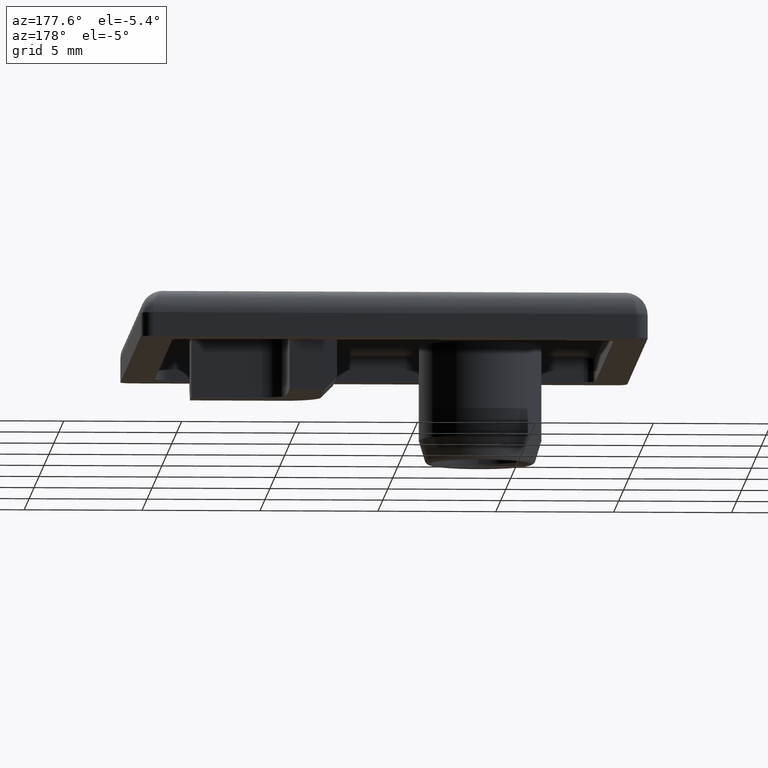
[diagram: clean part render]
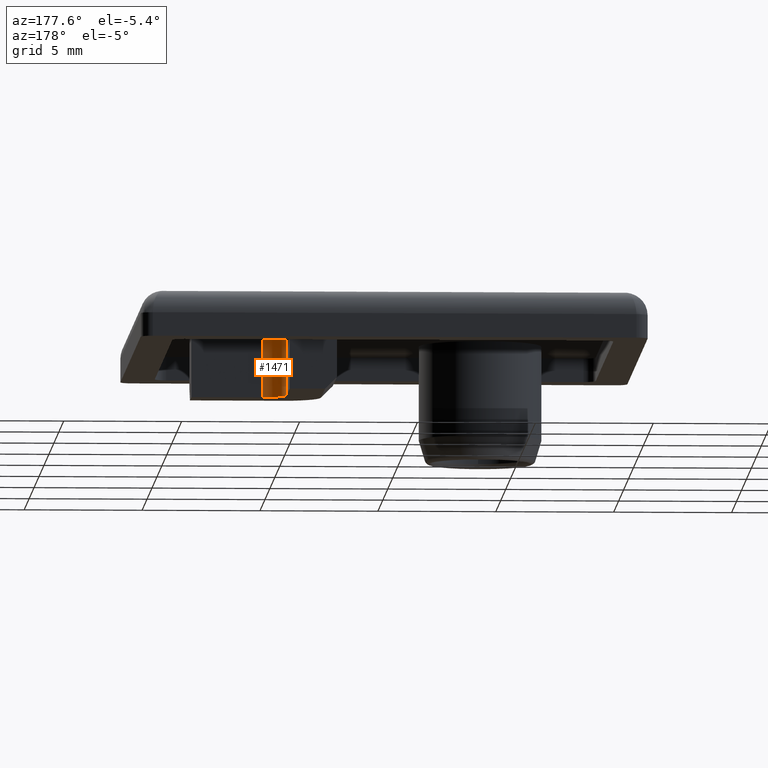
[diagram: same view with one face highlighted and labeled with its STEP entity id]
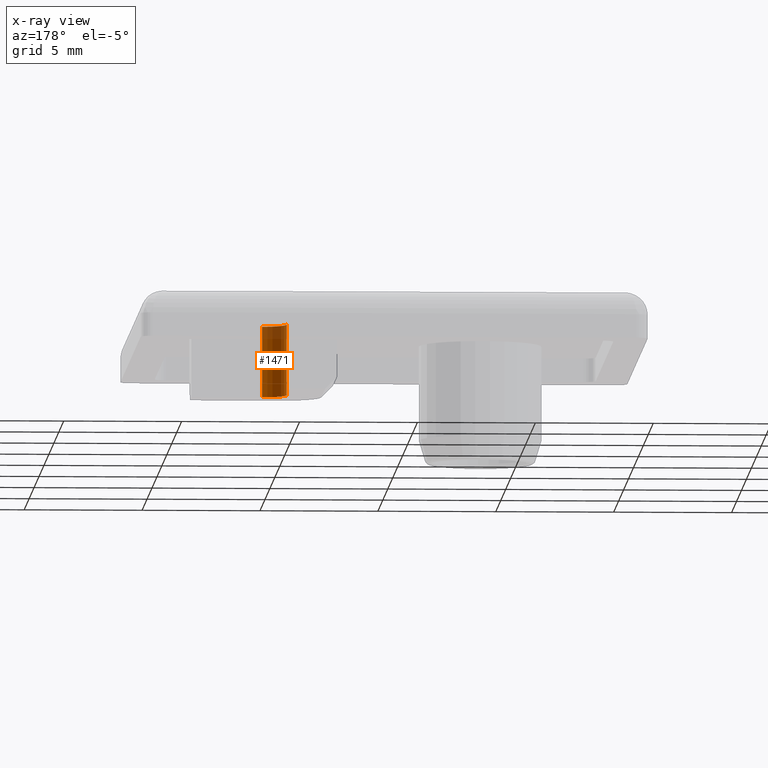
[diagram: x-ray of the same camera — body ghosted, the highlighted face saturated]
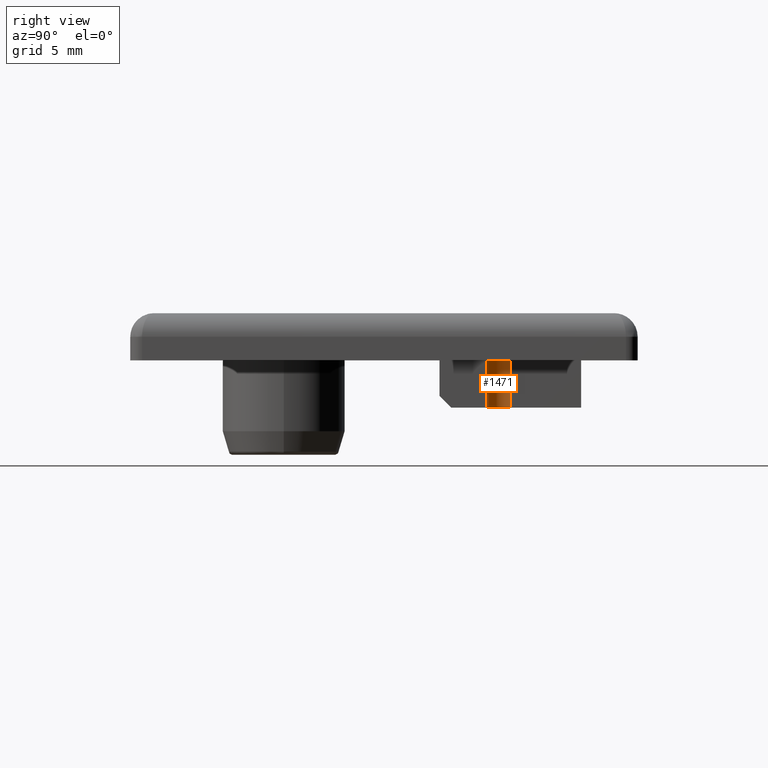
[diagram: same view with one face highlighted and labeled with its STEP entity id]
A machine part, auxiliary view. The second image highlights one B-rep face of the part: STEP entity #1471.
The next image is the same camera in x-ray: the body ghosted, the highlighted face saturated — about 18% of this face is hidden behind the body in this view.
A second angle (right view) of the same face is appended — the face is thin or edge-on in the first view.
In plain terms, the highlighted cylindrical surface (edge-blend (fillet) strip) has radius 1 mm, axis along (0, 0, 1).
Its self-contained STEP definition (entity closure, byte-faithful):
#468=CARTESIAN_POINT('',(15.953553390593276,14.953553390593267,1.0));
#469=VERTEX_POINT('',#468);
#478=CARTESIAN_POINT('',(14.953553390593283,15.953553390593267,1.0));
#479=VERTEX_POINT('',#478);
#480=CARTESIAN_POINT('',(15.953553390593276,15.953553390593267,1.0));
#481=DIRECTION('',(0.0,0.0,1.0));
#482=DIRECTION('',(1.0,0.0,0.0));
#483=AXIS2_PLACEMENT_3D('',#480,#481,#482);
#484=CIRCLE('',#483,1.000000000000001);
#485=EDGE_CURVE('',#479,#469,#484,.T.);
#1440=CARTESIAN_POINT('',(15.953553390593276,15.953553390593267,-2.000000010000000));
#1441=DIRECTION('',(0.0,0.0,1.0));
#1442=DIRECTION('',(1.0,0.0,0.0));
#1443=AXIS2_PLACEMENT_3D('',#1440,#1441,#1442);
#1444=CYLINDRICAL_SURFACE('',#1443,1.000000000000001);
#1445=ORIENTED_EDGE('',*,*,#485,.T.);
#1446=CARTESIAN_POINT('',(15.953553390593276,14.953553390593267,-2.0));
#1447=VERTEX_POINT('',#1446);
#1448=CARTESIAN_POINT('',(15.953553390593276,14.953553390593267,-2.0));
#1449=DIRECTION('',(0.0,0.0,1.0));
#1450=VECTOR('',#1449,3.0);
#1451=LINE('',#1448,#1450);
#1452=EDGE_CURVE('',#1447,#469,#1451,.T.);
#1453=ORIENTED_EDGE('',*,*,#1452,.F.);
#1454=CARTESIAN_POINT('',(14.953553390593283,15.953553390593267,-2.0));
#1455=VERTEX_POINT('',#1454);
#1456=CARTESIAN_POINT('',(15.953553390593276,15.953553390593267,-2.0));
#1457=DIRECTION('',(0.0,0.0,1.0));
#1458=DIRECTION('',(1.0,0.0,0.0));
#1459=AXIS2_PLACEMENT_3D('',#1456,#1457,#1458);
#1460=CIRCLE('',#1459,1.000000000000001);
#1461=EDGE_CURVE('',#1455,#1447,#1460,.T.);
#1462=ORIENTED_EDGE('',*,*,#1461,.F.);
#1463=CARTESIAN_POINT('',(14.953553390593283,15.953553390593267,-2.0));
#1464=DIRECTION('',(0.0,0.0,1.0));
#1465=VECTOR('',#1464,3.0);
#1466=LINE('',#1463,#1465);
#1467=EDGE_CURVE('',#1455,#479,#1466,.T.);
#1468=ORIENTED_EDGE('',*,*,#1467,.T.);
#1469=EDGE_LOOP('',(#1445,#1453,#1462,#1468));
#1470=FACE_OUTER_BOUND('',#1469,.T.);
#1471=ADVANCED_FACE('',(#1470),#1444,.F.);